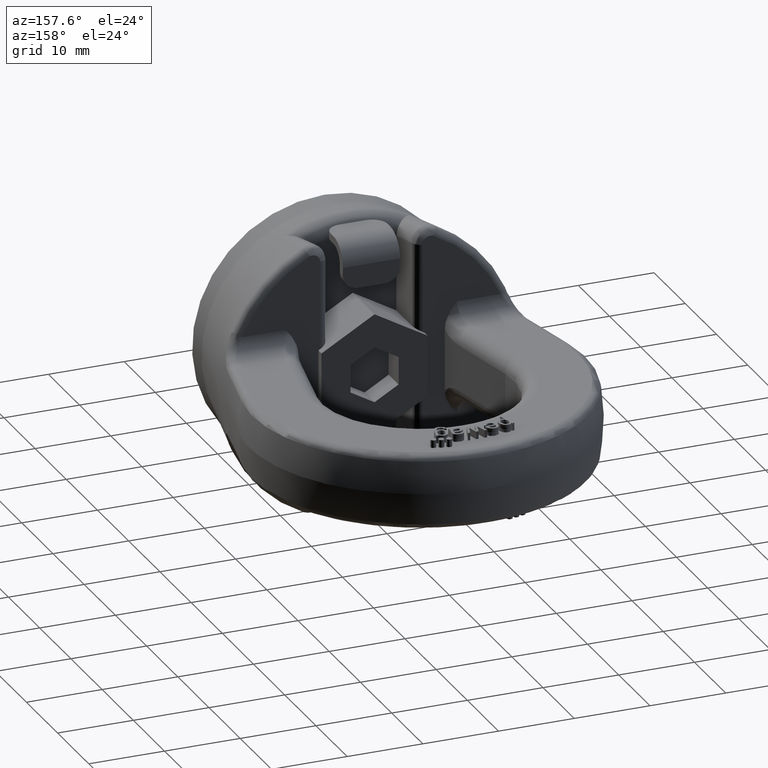
[diagram: clean part render]
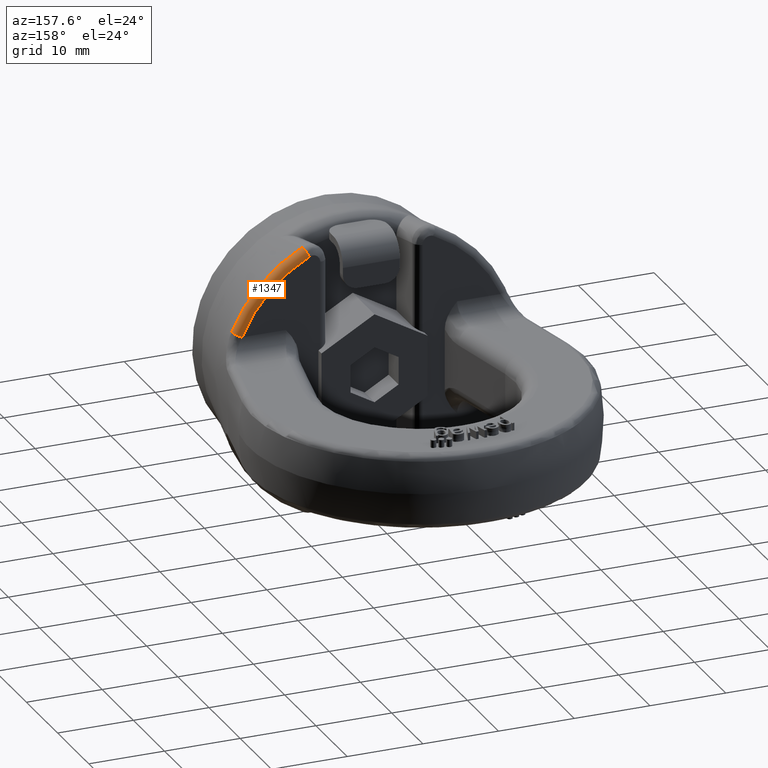
[diagram: same view with one face highlighted and labeled with its STEP entity id]
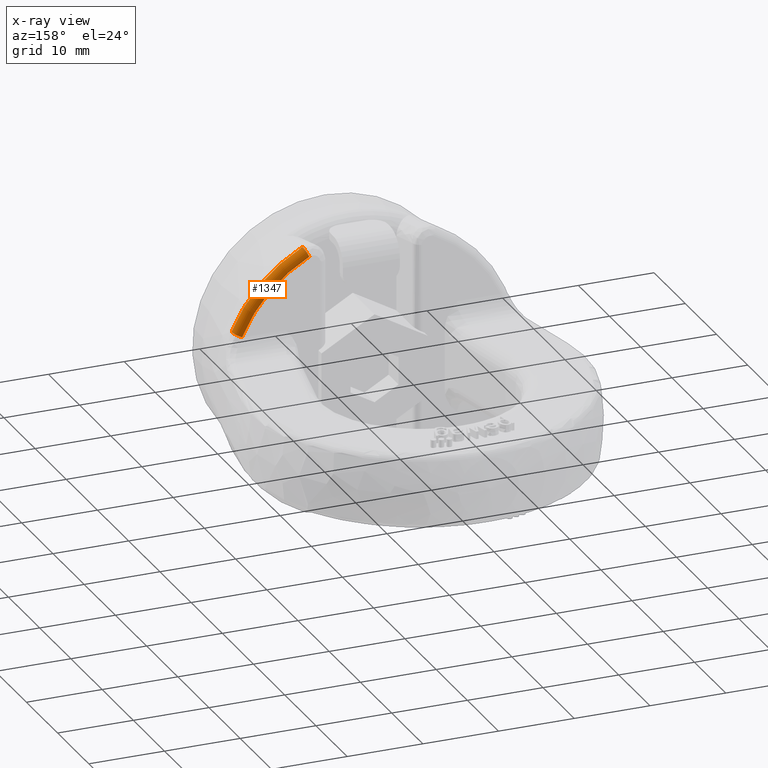
[diagram: x-ray of the same camera — body ghosted, the highlighted face saturated]
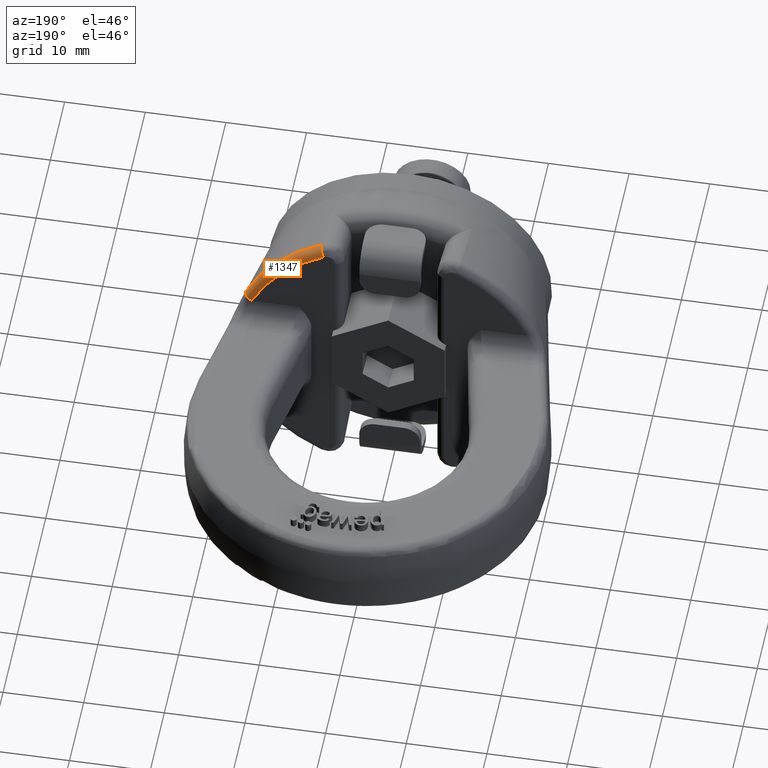
[diagram: same view with one face highlighted and labeled with its STEP entity id]
A machine part, auxiliary view. The second image highlights one B-rep face of the part: STEP entity #1347.
The next image is the same camera in x-ray: the body ghosted, the highlighted face saturated — about 0% of this face is hidden behind the body in this view.
A second angle (auxiliary view) of the same face is appended — the face is thin or edge-on in the first view.
In plain terms, the highlighted toroidal blend (fillet) surface has major radius 18.6548 mm and minor (blend) radius 1 mm.
Its self-contained STEP definition (entity closure, byte-faithful):
#1017=TOROIDAL_SURFACE('',#5191,18.6547584905246,1.);
#1123=FACE_OUTER_BOUND('',#1863,.T.);
#1347=ADVANCED_FACE('',(#1123),#1017,.T.);
#1674=CIRCLE('',#5131,18.6547584905246);
#1681=CIRCLE('',#5139,19.6357807990695);
#1699=CIRCLE('',#5189,1.);
#1700=CIRCLE('',#5190,1.);
#1863=EDGE_LOOP('',(#2956,#2957,#2958,#2959));
#2956=ORIENTED_EDGE('',*,*,#4443,.T.);
#2957=ORIENTED_EDGE('',*,*,#4361,.F.);
#2958=ORIENTED_EDGE('',*,*,#4444,.F.);
#2959=ORIENTED_EDGE('',*,*,#4385,.F.);
#3971=VERTEX_POINT('',#6694);
#3972=VERTEX_POINT('',#6696);
#3995=VERTEX_POINT('',#6842);
#3996=VERTEX_POINT('',#6844);
#4361=EDGE_CURVE('',#3971,#3972,#1674,.T.);
#4385=EDGE_CURVE('',#3995,#3996,#1681,.T.);
#4443=EDGE_CURVE('',#3995,#3972,#1699,.T.);
#4444=EDGE_CURVE('',#3996,#3971,#1700,.T.);
#5131=AXIS2_PLACEMENT_3D('',#6695,#5469,#5470);
#5139=AXIS2_PLACEMENT_3D('',#6843,#5491,#5492);
#5189=AXIS2_PLACEMENT_3D('',#7174,#5613,#5614);
#5190=AXIS2_PLACEMENT_3D('',#7193,#5615,#5616);
#5191=AXIS2_PLACEMENT_3D('',#7194,#5617,#5618);
#5469=DIRECTION('',(0.,1.,0.));
#5470=DIRECTION('',(0.,0.,1.));
#5491=DIRECTION('',(0.,-1.,0.));
#5492=DIRECTION('',(0.,0.,-1.));
#5613=DIRECTION('',(-0.402042192280835,-5.17225235225014E-15,0.915621141971951));
#5614=DIRECTION('',(0.91562114197195,0.,0.402042192280834));
#5615=DIRECTION('',(-0.898314749677879,1.36070110612007E-16,0.439352490047763));
#5616=DIRECTION('',(0.439352490047763,0.,0.89831474967788));
#5617=DIRECTION('',(0.,1.,0.));
#5618=DIRECTION('',(0.,0.,1.));
#6694=CARTESIAN_POINT('',(8.19601459405158,15.,16.7578447037169));
#6695=CARTESIAN_POINT('',(-1.26937408619406E-13,15.,4.20507007568095E-14));
#6696=CARTESIAN_POINT('',(17.080691272305,15.,7.50000000000001));
#6842=CARTESIAN_POINT('',(17.9789360387548,13.8061051054376,7.89441235960378));
#6843=CARTESIAN_POINT('',(-9.42158381437761E-14,13.8061051054376,0.));
#6844=CARTESIAN_POINT('',(8.62702918810316,13.8061051054376,17.6391115132458));
#7174=CARTESIAN_POINT('',(17.080691272305,14.,7.50000000000001));
#7193=CARTESIAN_POINT('',(8.19601459405158,14.,16.7578447037169));
#7194=CARTESIAN_POINT('',(-1.26937408619406E-13,14.,4.20507007568095E-14));